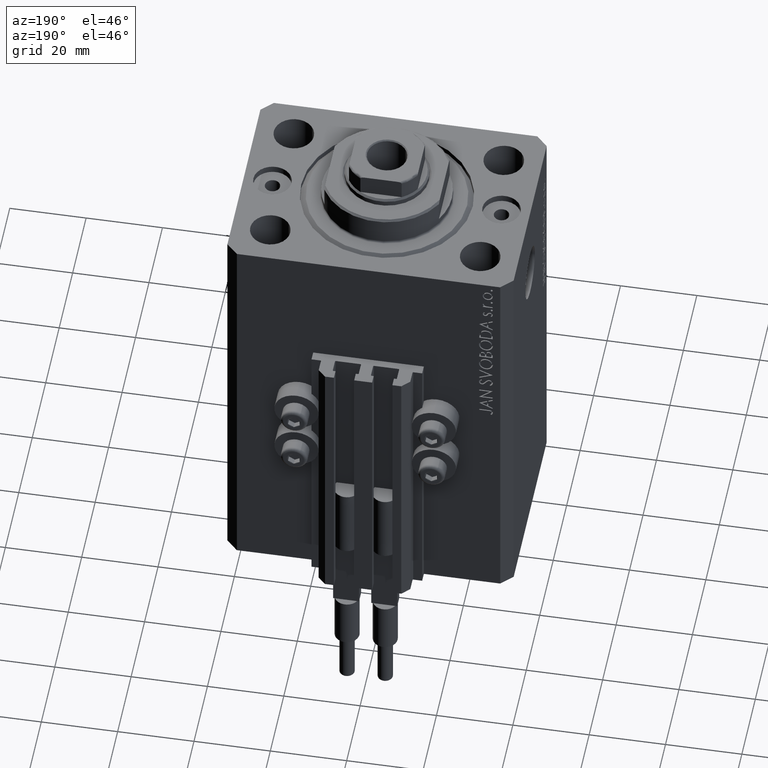
[diagram: clean part render]
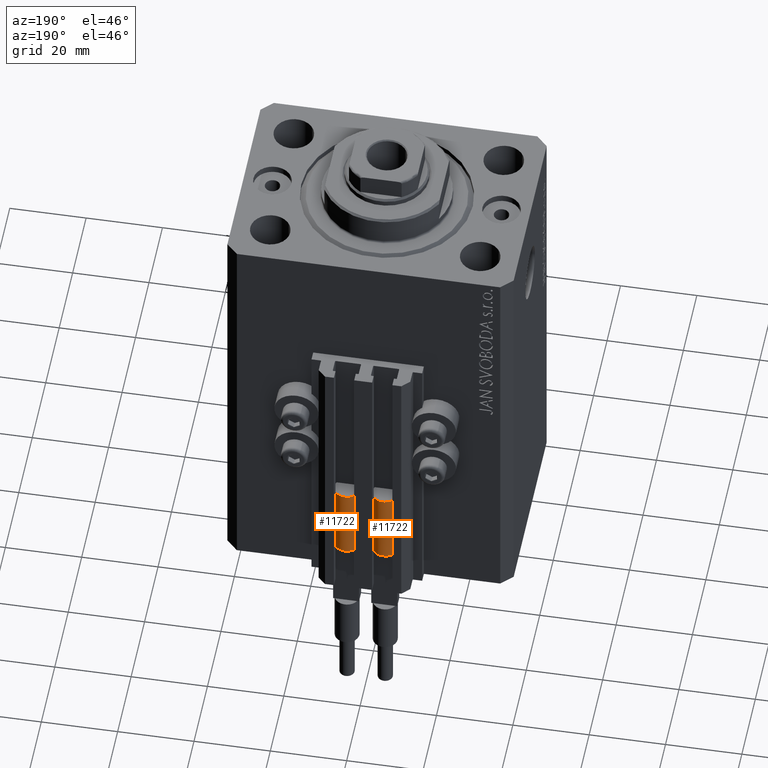
[diagram: same view with one multi-face feature highlighted, each face labeled with its STEP entity id]
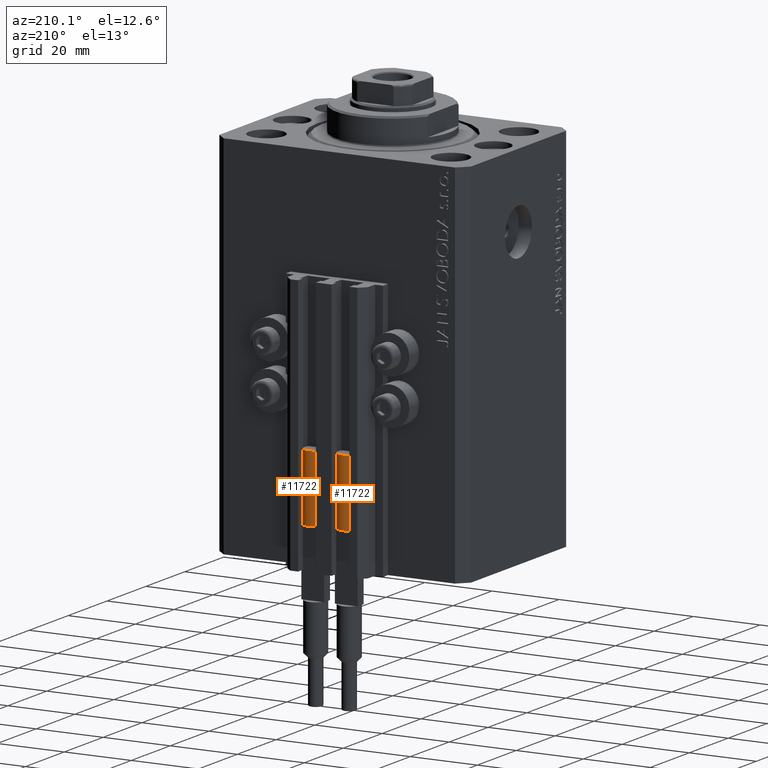
[diagram: same view with one multi-face feature highlighted, each face labeled with its STEP entity id]
A machine part, auxiliary view. The highlighted faces form ONE feature: a constant-radius fillet chain: 2 tangent blend faces with common blend radius 3.4 mm. The faces share edges in the B-rep.
A second angle (auxiliary view) of the same feature is appended — it is thin or edge-on in the first view.
Their STEP definitions:
[1] entity #11722 (Cylinder):
#133 = VERTEX_POINT ( 'NONE', #34010 ) ;
#159 = VECTOR ( 'NONE', #37083, 1000.000000000000000 ) ;
#1322 = ORIENTED_EDGE ( 'NONE', *, *, #47381, .T. ) ;
#1688 = AXIS2_PLACEMENT_3D ( 'NONE', #5556, #20355, #35166 ) ;
#2138 = FACE_OUTER_BOUND ( 'NONE', #32498, .T. ) ;
#3046 = CIRCLE ( 'NONE', #5419, 3.400000000000000355 ) ;
#3441 = DIRECTION ( 'NONE',  ( 0.000000000000000000, 0.000000000000000000, 1.000000000000000000 ) ) ;
#4035 = CIRCLE ( 'NONE', #27296, 3.400000000000000355 ) ;
#4132 = VERTEX_POINT ( 'NONE', #9177 ) ;
#5419 = AXIS2_PLACEMENT_3D ( 'NONE', #15382, #30208, #45037 ) ;
#5556 = CARTESIAN_POINT ( 'NONE',  ( 0.000000000000000000, 0.000000000000000000, 20.00000000000000000 ) ) ;
#6506 = CARTESIAN_POINT ( 'NONE',  ( 3.400000000000000355, 4.163799117101001052E-16, 20.00000000000000000 ) ) ;
#6548 = EDGE_CURVE ( 'NONE', #45080, #41314, #8895, .T. ) ;
#6765 = VERTEX_POINT ( 'NONE', #24887 ) ;
#6911 = DIRECTION ( 'NONE',  ( 0.000000000000000000, 0.000000000000000000, 1.000000000000000000 ) ) ;
#8895 = LINE ( 'NONE', #26870, #13939 ) ;
#9177 = CARTESIAN_POINT ( 'NONE',  ( 3.400000000000000355, 0.000000000000000000, 20.00000000000000000 ) ) ;
#9409 = CIRCLE ( 'NONE', #33458, 3.400000000000000355 ) ;
#11722 = ADVANCED_FACE ( 'NONE', ( #2138 ), #38824, .T. ) ;
#12530 = DIRECTION ( 'NONE',  ( -0.000000000000000000, -0.000000000000000000, -1.000000000000000000 ) ) ;
#12719 = EDGE_CURVE ( 'NONE', #4132, #133, #17899, .T. ) ;
#12763 = CARTESIAN_POINT ( 'NONE',  ( 0.000000000000000000, 0.000000000000000000, 20.00000000000000000 ) ) ;
#13939 = VECTOR ( 'NONE', #12530, 1000.000000000000000 ) ;
#15382 = CARTESIAN_POINT ( 'NONE',  ( 0.000000000000000000, 0.000000000000000000, 20.00000000000000000 ) ) ;
#16792 = ORIENTED_EDGE ( 'NONE', *, *, #38496, .F. ) ;
#17899 = LINE ( 'NONE', #6506, #159 ) ;
#19877 = CARTESIAN_POINT ( 'NONE',  ( 3.051229260478471428, -1.500000000000000000, 20.00000000000000000 ) ) ;
#20350 = VERTEX_POINT ( 'NONE', #19877 ) ;
#20355 = DIRECTION ( 'NONE',  ( -0.000000000000000000, -0.000000000000000000, -1.000000000000000000 ) ) ;
#21710 = DIRECTION ( 'NONE',  ( 1.000000000000000000, 0.000000000000000000, 0.000000000000000000 ) ) ;
#22913 = ORIENTED_EDGE ( 'NONE', *, *, #38150, .F. ) ;
#23187 = ORIENTED_EDGE ( 'NONE', *, *, #44220, .F. ) ;
#24887 = CARTESIAN_POINT ( 'NONE',  ( -3.051229260478471428, -1.500000000000000000, 20.00000000000000000 ) ) ;
#26254 = DIRECTION ( 'NONE',  ( 1.000000000000000000, 0.000000000000000000, 0.000000000000000000 ) ) ;
#26870 = CARTESIAN_POINT ( 'NONE',  ( -3.400000000000000355, 0.000000000000000000, 20.00000000000000000 ) ) ;
#27296 = AXIS2_PLACEMENT_3D ( 'NONE', #12763, #31224, #30975 ) ;
#27689 = CARTESIAN_POINT ( 'NONE',  ( -3.399999999999999467, -4.915049848600952119E-16, 20.00000000000000000 ) ) ;
#29902 = CARTESIAN_POINT ( 'NONE',  ( 0.000000000000000000, 0.000000000000000000, 20.00000000000000000 ) ) ;
#30208 = DIRECTION ( 'NONE',  ( 0.000000000000000000, 0.000000000000000000, 1.000000000000000000 ) ) ;
#30975 = DIRECTION ( 'NONE',  ( 1.000000000000000000, 0.000000000000000000, 0.000000000000000000 ) ) ;
#31067 = CIRCLE ( 'NONE', #34936, 3.400000000000000355 ) ;
#31224 = DIRECTION ( 'NONE',  ( 0.000000000000000000, 0.000000000000000000, 1.000000000000000000 ) ) ;
#31896 = ORIENTED_EDGE ( 'NONE', *, *, #6548, .T. ) ;
#32498 = EDGE_LOOP ( 'NONE', ( #35385, #16792, #22913, #23187, #31896, #1322 ) ) ;
#33458 = AXIS2_PLACEMENT_3D ( 'NONE', #29902, #3441, #26254 ) ;
#33833 = CARTESIAN_POINT ( 'NONE',  ( -3.400000000000000355, 0.000000000000000000, 0.000000000000000000 ) ) ;
#34010 = CARTESIAN_POINT ( 'NONE',  ( 3.400000000000000355, 4.163799117101001052E-16, 0.000000000000000000 ) ) ;
#34936 = AXIS2_PLACEMENT_3D ( 'NONE', #47732, #6911, #21710 ) ;
#35166 = DIRECTION ( 'NONE',  ( -1.000000000000000000, 0.000000000000000000, 0.000000000000000000 ) ) ;
#35385 = ORIENTED_EDGE ( 'NONE', *, *, #12719, .F. ) ;
#37083 = DIRECTION ( 'NONE',  ( -0.000000000000000000, -0.000000000000000000, -1.000000000000000000 ) ) ;
#38150 = EDGE_CURVE ( 'NONE', #6765, #20350, #9409, .T. ) ;
#38496 = EDGE_CURVE ( 'NONE', #20350, #4132, #4035, .T. ) ;
#38824 = CYLINDRICAL_SURFACE ( 'NONE', #1688, 3.400000000000000355 ) ;
#41314 = VERTEX_POINT ( 'NONE', #33833 ) ;
#44220 = EDGE_CURVE ( 'NONE', #45080, #6765, #3046, .T. ) ;
#45037 = DIRECTION ( 'NONE',  ( 1.000000000000000000, 0.000000000000000000, 0.000000000000000000 ) ) ;
#45080 = VERTEX_POINT ( 'NONE', #27689 ) ;
#47381 = EDGE_CURVE ( 'NONE', #41314, #133, #31067, .T. ) ;
#47732 = CARTESIAN_POINT ( 'NONE',  ( 0.000000000000000000, 0.000000000000000000, 0.000000000000000000 ) ) ;
[2] entity #11722 (Cylinder):
#133 = VERTEX_POINT ( 'NONE', #34010 ) ;
#159 = VECTOR ( 'NONE', #37083, 1000.000000000000000 ) ;
#1322 = ORIENTED_EDGE ( 'NONE', *, *, #47381, .T. ) ;
#1688 = AXIS2_PLACEMENT_3D ( 'NONE', #5556, #20355, #35166 ) ;
#2138 = FACE_OUTER_BOUND ( 'NONE', #32498, .T. ) ;
#3046 = CIRCLE ( 'NONE', #5419, 3.400000000000000355 ) ;
#3441 = DIRECTION ( 'NONE',  ( 0.000000000000000000, 0.000000000000000000, 1.000000000000000000 ) ) ;
#4035 = CIRCLE ( 'NONE', #27296, 3.400000000000000355 ) ;
#4132 = VERTEX_POINT ( 'NONE', #9177 ) ;
#5419 = AXIS2_PLACEMENT_3D ( 'NONE', #15382, #30208, #45037 ) ;
#5556 = CARTESIAN_POINT ( 'NONE',  ( 0.000000000000000000, 0.000000000000000000, 20.00000000000000000 ) ) ;
#6506 = CARTESIAN_POINT ( 'NONE',  ( 3.400000000000000355, 4.163799117101001052E-16, 20.00000000000000000 ) ) ;
#6548 = EDGE_CURVE ( 'NONE', #45080, #41314, #8895, .T. ) ;
#6765 = VERTEX_POINT ( 'NONE', #24887 ) ;
#6911 = DIRECTION ( 'NONE',  ( 0.000000000000000000, 0.000000000000000000, 1.000000000000000000 ) ) ;
#8895 = LINE ( 'NONE', #26870, #13939 ) ;
#9177 = CARTESIAN_POINT ( 'NONE',  ( 3.400000000000000355, 0.000000000000000000, 20.00000000000000000 ) ) ;
#9409 = CIRCLE ( 'NONE', #33458, 3.400000000000000355 ) ;
#11722 = ADVANCED_FACE ( 'NONE', ( #2138 ), #38824, .T. ) ;
#12530 = DIRECTION ( 'NONE',  ( -0.000000000000000000, -0.000000000000000000, -1.000000000000000000 ) ) ;
#12719 = EDGE_CURVE ( 'NONE', #4132, #133, #17899, .T. ) ;
#12763 = CARTESIAN_POINT ( 'NONE',  ( 0.000000000000000000, 0.000000000000000000, 20.00000000000000000 ) ) ;
#13939 = VECTOR ( 'NONE', #12530, 1000.000000000000000 ) ;
#15382 = CARTESIAN_POINT ( 'NONE',  ( 0.000000000000000000, 0.000000000000000000, 20.00000000000000000 ) ) ;
#16792 = ORIENTED_EDGE ( 'NONE', *, *, #38496, .F. ) ;
#17899 = LINE ( 'NONE', #6506, #159 ) ;
#19877 = CARTESIAN_POINT ( 'NONE',  ( 3.051229260478471428, -1.500000000000000000, 20.00000000000000000 ) ) ;
#20350 = VERTEX_POINT ( 'NONE', #19877 ) ;
#20355 = DIRECTION ( 'NONE',  ( -0.000000000000000000, -0.000000000000000000, -1.000000000000000000 ) ) ;
#21710 = DIRECTION ( 'NONE',  ( 1.000000000000000000, 0.000000000000000000, 0.000000000000000000 ) ) ;
#22913 = ORIENTED_EDGE ( 'NONE', *, *, #38150, .F. ) ;
#23187 = ORIENTED_EDGE ( 'NONE', *, *, #44220, .F. ) ;
#24887 = CARTESIAN_POINT ( 'NONE',  ( -3.051229260478471428, -1.500000000000000000, 20.00000000000000000 ) ) ;
#26254 = DIRECTION ( 'NONE',  ( 1.000000000000000000, 0.000000000000000000, 0.000000000000000000 ) ) ;
#26870 = CARTESIAN_POINT ( 'NONE',  ( -3.400000000000000355, 0.000000000000000000, 20.00000000000000000 ) ) ;
#27296 = AXIS2_PLACEMENT_3D ( 'NONE', #12763, #31224, #30975 ) ;
#27689 = CARTESIAN_POINT ( 'NONE',  ( -3.399999999999999467, -4.915049848600952119E-16, 20.00000000000000000 ) ) ;
#29902 = CARTESIAN_POINT ( 'NONE',  ( 0.000000000000000000, 0.000000000000000000, 20.00000000000000000 ) ) ;
#30208 = DIRECTION ( 'NONE',  ( 0.000000000000000000, 0.000000000000000000, 1.000000000000000000 ) ) ;
#30975 = DIRECTION ( 'NONE',  ( 1.000000000000000000, 0.000000000000000000, 0.000000000000000000 ) ) ;
#31067 = CIRCLE ( 'NONE', #34936, 3.400000000000000355 ) ;
#31224 = DIRECTION ( 'NONE',  ( 0.000000000000000000, 0.000000000000000000, 1.000000000000000000 ) ) ;
#31896 = ORIENTED_EDGE ( 'NONE', *, *, #6548, .T. ) ;
#32498 = EDGE_LOOP ( 'NONE', ( #35385, #16792, #22913, #23187, #31896, #1322 ) ) ;
#33458 = AXIS2_PLACEMENT_3D ( 'NONE', #29902, #3441, #26254 ) ;
#33833 = CARTESIAN_POINT ( 'NONE',  ( -3.400000000000000355, 0.000000000000000000, 0.000000000000000000 ) ) ;
#34010 = CARTESIAN_POINT ( 'NONE',  ( 3.400000000000000355, 4.163799117101001052E-16, 0.000000000000000000 ) ) ;
#34936 = AXIS2_PLACEMENT_3D ( 'NONE', #47732, #6911, #21710 ) ;
#35166 = DIRECTION ( 'NONE',  ( -1.000000000000000000, 0.000000000000000000, 0.000000000000000000 ) ) ;
#35385 = ORIENTED_EDGE ( 'NONE', *, *, #12719, .F. ) ;
#37083 = DIRECTION ( 'NONE',  ( -0.000000000000000000, -0.000000000000000000, -1.000000000000000000 ) ) ;
#38150 = EDGE_CURVE ( 'NONE', #6765, #20350, #9409, .T. ) ;
#38496 = EDGE_CURVE ( 'NONE', #20350, #4132, #4035, .T. ) ;
#38824 = CYLINDRICAL_SURFACE ( 'NONE', #1688, 3.400000000000000355 ) ;
#41314 = VERTEX_POINT ( 'NONE', #33833 ) ;
#44220 = EDGE_CURVE ( 'NONE', #45080, #6765, #3046, .T. ) ;
#45037 = DIRECTION ( 'NONE',  ( 1.000000000000000000, 0.000000000000000000, 0.000000000000000000 ) ) ;
#45080 = VERTEX_POINT ( 'NONE', #27689 ) ;
#47381 = EDGE_CURVE ( 'NONE', #41314, #133, #31067, .T. ) ;
#47732 = CARTESIAN_POINT ( 'NONE',  ( 0.000000000000000000, 0.000000000000000000, 0.000000000000000000 ) ) ;